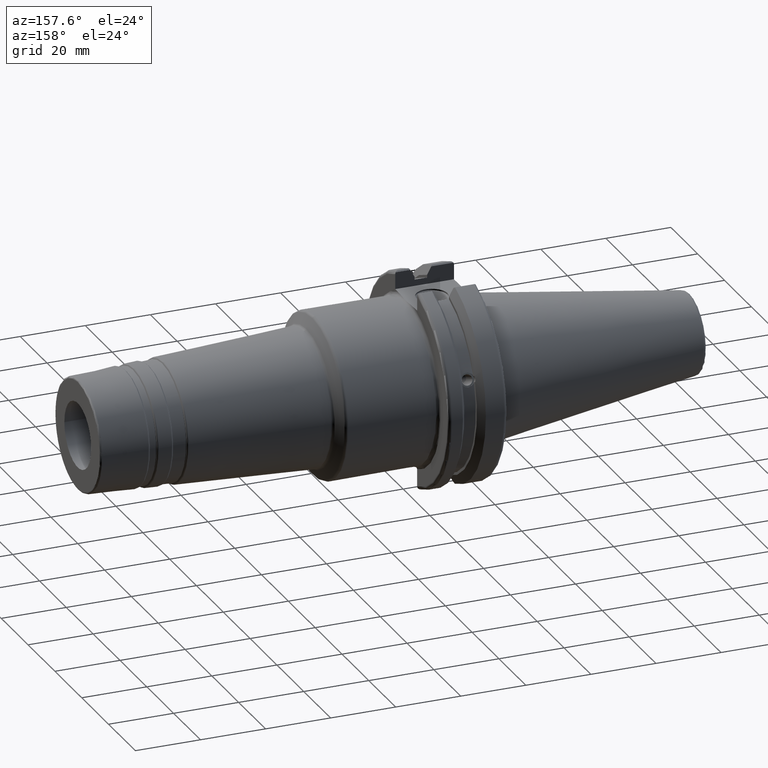
[diagram: clean part render]
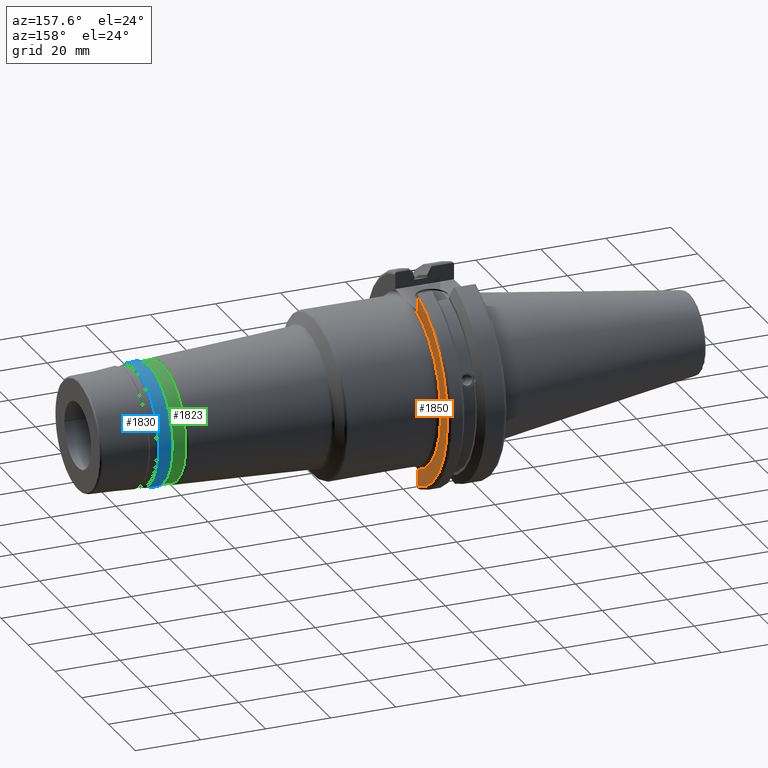
[diagram: same view with three faces highlighted in distinct colors, each labeled with its STEP entity id]
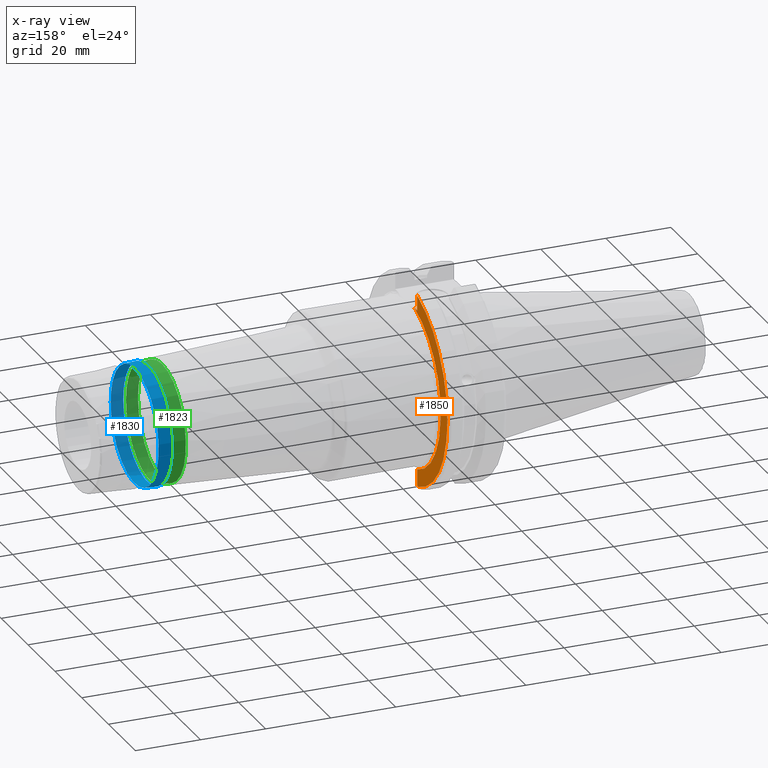
[diagram: x-ray of the same camera — body ghosted, the three highlighted faces saturated]
A machine part, auxiliary view with three faces highlighted in distinct colors.
The next image is the same camera in x-ray (body ghosted, the three faces saturated) — at least one of them is partly hidden behind the body in this view.
Their STEP definitions:

[orange] entity #1850 — the highlighted planar face has unit normal (1, 0, 0).
#136=PLANE('',#2048);
#188=LINE('',#3108,#281);
#189=LINE('',#3112,#282);
#190=LINE('',#3113,#283);
#281=VECTOR('',#2426,10.);
#282=VECTOR('',#2429,10.);
#283=VECTOR('',#2430,10.);
#409=FACE_OUTER_BOUND('',#520,.T.);
#520=EDGE_LOOP('',(#1395,#1396,#1397,#1398,#1399));
#661=CIRCLE('',#2028,25.75);
#672=CIRCLE('',#2049,30.75);
#778=VERTEX_POINT('',#2953);
#780=VERTEX_POINT('',#2976);
#798=VERTEX_POINT('',#3107);
#799=VERTEX_POINT('',#3109);
#800=VERTEX_POINT('',#3111);
#996=EDGE_CURVE('',#780,#778,#661,.T.);
#1021=EDGE_CURVE('',#780,#798,#188,.T.);
#1022=EDGE_CURVE('',#799,#798,#672,.T.);
#1023=EDGE_CURVE('',#799,#800,#189,.T.);
#1024=EDGE_CURVE('',#800,#778,#190,.T.);
#1395=ORIENTED_EDGE('',*,*,#996,.F.);
#1396=ORIENTED_EDGE('',*,*,#1021,.T.);
#1397=ORIENTED_EDGE('',*,*,#1022,.F.);
#1398=ORIENTED_EDGE('',*,*,#1023,.T.);
#1399=ORIENTED_EDGE('',*,*,#1024,.T.);
#1850=ADVANCED_FACE('',(#409),#136,.T.);
#2028=AXIS2_PLACEMENT_3D('',#2987,#2374,#2375);
#2048=AXIS2_PLACEMENT_3D('',#3106,#2424,#2425);
#2049=AXIS2_PLACEMENT_3D('',#3110,#2427,#2428);
#2374=DIRECTION('center_axis',(1.,0.,0.));
#2375=DIRECTION('ref_axis',(0.,6.12323399573677E-17,1.));
#2424=DIRECTION('center_axis',(1.,0.,0.));
#2425=DIRECTION('ref_axis',(0.,0.,-1.));
#2426=DIRECTION('',(0.,0.,-1.));
#2427=DIRECTION('center_axis',(-1.,0.,0.));
#2428=DIRECTION('ref_axis',(0.,1.,-6.12323399573677E-17));
#2429=DIRECTION('',(0.,0.,-1.));
#2430=DIRECTION('',(0.,-1.,0.));
#2953=CARTESIAN_POINT('',(19.05,6.16948133962652,25.));
#2976=CARTESIAN_POINT('',(19.05,8.19,-24.4128326910254));
#2987=CARTESIAN_POINT('Origin',(19.05,0.,0.));
#3106=CARTESIAN_POINT('Origin',(19.05,0.,0.));
#3107=CARTESIAN_POINT('',(19.05,8.19,-29.6392712461019));
#3108=CARTESIAN_POINT('',(19.05,8.19,-11.3));
#3109=CARTESIAN_POINT('',(19.05,8.19,29.6392712461019));
#3110=CARTESIAN_POINT('Origin',(19.05,0.,0.));
#3111=CARTESIAN_POINT('',(19.05,8.19,25.));
#3112=CARTESIAN_POINT('',(19.05,8.19,12.5));
#3113=CARTESIAN_POINT('',(19.05,0.,25.));

[blue] entity #1830 — the highlighted conical surface has half-angle 3 deg.
#174=LINE('',#2883,#267);
#267=VECTOR('',#2306,18.0202570867172);
#360=CONICAL_SURFACE('',#1995,18.0202570867172,0.0523598775598298);
#389=FACE_OUTER_BOUND('',#495,.T.);
#495=EDGE_LOOP('',(#1293,#1294,#1295,#1296,#1297,#1298));
#637=CIRCLE('',#1993,17.9166117566925);
#638=CIRCLE('',#1994,17.9166117566925);
#639=CIRCLE('',#1996,18.1239024167419);
#640=CIRCLE('',#1997,18.1239024167419);
#758=VERTEX_POINT('',#2876);
#759=VERTEX_POINT('',#2878);
#760=VERTEX_POINT('',#2882);
#761=VERTEX_POINT('',#2884);
#964=EDGE_CURVE('',#758,#759,#637,.T.);
#965=EDGE_CURVE('',#759,#758,#638,.T.);
#966=EDGE_CURVE('',#759,#760,#174,.T.);
#967=EDGE_CURVE('',#761,#760,#639,.T.);
#968=EDGE_CURVE('',#760,#761,#640,.T.);
#1293=ORIENTED_EDGE('',*,*,#965,.F.);
#1294=ORIENTED_EDGE('',*,*,#966,.T.);
#1295=ORIENTED_EDGE('',*,*,#967,.F.);
#1296=ORIENTED_EDGE('',*,*,#968,.F.);
#1297=ORIENTED_EDGE('',*,*,#966,.F.);
#1298=ORIENTED_EDGE('',*,*,#964,.F.);
#1830=ADVANCED_FACE('',(#389),#360,.T.);
#1993=AXIS2_PLACEMENT_3D('',#2879,#2300,#2301);
#1994=AXIS2_PLACEMENT_3D('',#2880,#2302,#2303);
#1995=AXIS2_PLACEMENT_3D('',#2881,#2304,#2305);
#1996=AXIS2_PLACEMENT_3D('',#2885,#2307,#2308);
#1997=AXIS2_PLACEMENT_3D('',#2886,#2309,#2310);
#2300=DIRECTION('center_axis',(1.,0.,0.));
#2301=DIRECTION('ref_axis',(0.,-1.,3.06161699786838E-17));
#2302=DIRECTION('center_axis',(1.,0.,0.));
#2303=DIRECTION('ref_axis',(0.,-1.,3.06161699786838E-17));
#2304=DIRECTION('center_axis',(-1.,0.,0.));
#2305=DIRECTION('ref_axis',(0.,1.,0.));
#2306=DIRECTION('',(-0.998629534754574,-0.0523359562429437,-6.4093061293237E-18));
#2307=DIRECTION('center_axis',(-1.,0.,0.));
#2308=DIRECTION('ref_axis',(0.,-1.,3.06161699786838E-17));
#2309=DIRECTION('center_axis',(-1.,0.,0.));
#2310=DIRECTION('ref_axis',(0.,-1.,3.06161699786838E-17));
#2876=CARTESIAN_POINT('',(102.510005780972,-2.19415212393993E-15,17.9166117566925));
#2878=CARTESIAN_POINT('',(102.510005780972,-17.9166117566925,-2.19415212393993E-15));
#2879=CARTESIAN_POINT('Origin',(102.510005780972,0.,-2.74269015492491E-15));
#2880=CARTESIAN_POINT('Origin',(102.510005780972,0.,-2.74269015492491E-15));
#2881=CARTESIAN_POINT('Origin',(100.532335071726,0.,0.));
#2882=CARTESIAN_POINT('',(98.5546643624796,-18.1239024167419,-2.2195379082722E-15));
#2883=CARTESIAN_POINT('',(100.532335071726,-18.0202570867172,-2.20684501610606E-15));
#2884=CARTESIAN_POINT('',(98.5546643624796,-2.2195379082722E-15,18.1239024167419));
#2885=CARTESIAN_POINT('Origin',(98.5546643624796,0.,-2.77442238534024E-15));
#2886=CARTESIAN_POINT('Origin',(98.5546643624796,0.,-2.77442238534024E-15));

[green] entity #1823 — the highlighted conical surface has half-angle 3 deg.
#170=LINE('',#2841,#263);
#263=VECTOR('',#2254,17.7564541224332);
#356=CONICAL_SURFACE('',#1971,17.7564541224332,0.0523598775598297);
#382=FACE_OUTER_BOUND('',#488,.T.);
#488=EDGE_LOOP('',(#1251,#1252,#1253,#1254,#1255,#1256));
#617=CIRCLE('',#1966,17.6578254456323);
#621=CIRCLE('',#1970,17.6578254456323);
#622=CIRCLE('',#1972,17.855082799234);
#623=CIRCLE('',#1973,17.855082799234);
#742=VERTEX_POINT('',#2830);
#743=VERTEX_POINT('',#2831);
#746=VERTEX_POINT('',#2840);
#747=VERTEX_POINT('',#2842);
#940=EDGE_CURVE('',#742,#743,#617,.T.);
#944=EDGE_CURVE('',#743,#742,#621,.T.);
#945=EDGE_CURVE('',#742,#746,#170,.T.);
#946=EDGE_CURVE('',#747,#746,#622,.T.);
#947=EDGE_CURVE('',#746,#747,#623,.T.);
#1251=ORIENTED_EDGE('',*,*,#940,.F.);
#1252=ORIENTED_EDGE('',*,*,#945,.T.);
#1253=ORIENTED_EDGE('',*,*,#946,.F.);
#1254=ORIENTED_EDGE('',*,*,#947,.F.);
#1255=ORIENTED_EDGE('',*,*,#945,.F.);
#1256=ORIENTED_EDGE('',*,*,#944,.F.);
#1823=ADVANCED_FACE('',(#382),#356,.T.);
#1966=AXIS2_PLACEMENT_3D('',#2832,#2242,#2243);
#1970=AXIS2_PLACEMENT_3D('',#2838,#2250,#2251);
#1971=AXIS2_PLACEMENT_3D('',#2839,#2252,#2253);
#1972=AXIS2_PLACEMENT_3D('',#2843,#2255,#2256);
#1973=AXIS2_PLACEMENT_3D('',#2844,#2257,#2258);
#2242=DIRECTION('center_axis',(1.,0.,0.));
#2243=DIRECTION('ref_axis',(0.,-1.,3.06161699786838E-17));
#2250=DIRECTION('center_axis',(1.,0.,0.));
#2251=DIRECTION('ref_axis',(0.,-1.,3.06161699786838E-17));
#2252=DIRECTION('center_axis',(-1.,0.,0.));
#2253=DIRECTION('ref_axis',(0.,1.,0.));
#2254=DIRECTION('',(-0.998629534754574,-0.0523359562429436,-6.40930612932369E-18));
#2255=DIRECTION('center_axis',(-1.,0.,0.));
#2256=DIRECTION('ref_axis',(0.,-1.,3.06161699786838E-17));
#2257=DIRECTION('center_axis',(-1.,0.,0.));
#2258=DIRECTION('ref_axis',(0.,-1.,3.06161699786838E-17));
#2830=CARTESIAN_POINT('',(97.8942814505757,-17.6578254456323,-2.16245994118963E-15));
#2831=CARTESIAN_POINT('',(97.8942814505757,-2.16245994118963E-15,17.6578254456323));
#2832=CARTESIAN_POINT('Origin',(97.8942814505757,0.,-2.70307492648704E-15));
#2838=CARTESIAN_POINT('Origin',(97.8942814505757,0.,-2.70307492648704E-15));
#2839=CARTESIAN_POINT('Origin',(96.0123341872088,0.,0.));
#2840=CARTESIAN_POINT('',(94.1303869238419,-17.855082799234,-2.18661699985929E-15));
#2841=CARTESIAN_POINT('',(96.0123341872088,-17.7564541224332,-2.17453847052446E-15));
#2842=CARTESIAN_POINT('',(94.1303869238419,-2.18661699985929E-15,17.855082799234));
#2843=CARTESIAN_POINT('Origin',(94.1303869238419,0.,-2.73327124982411E-15));
#2844=CARTESIAN_POINT('Origin',(94.1303869238419,0.,-2.73327124982411E-15));